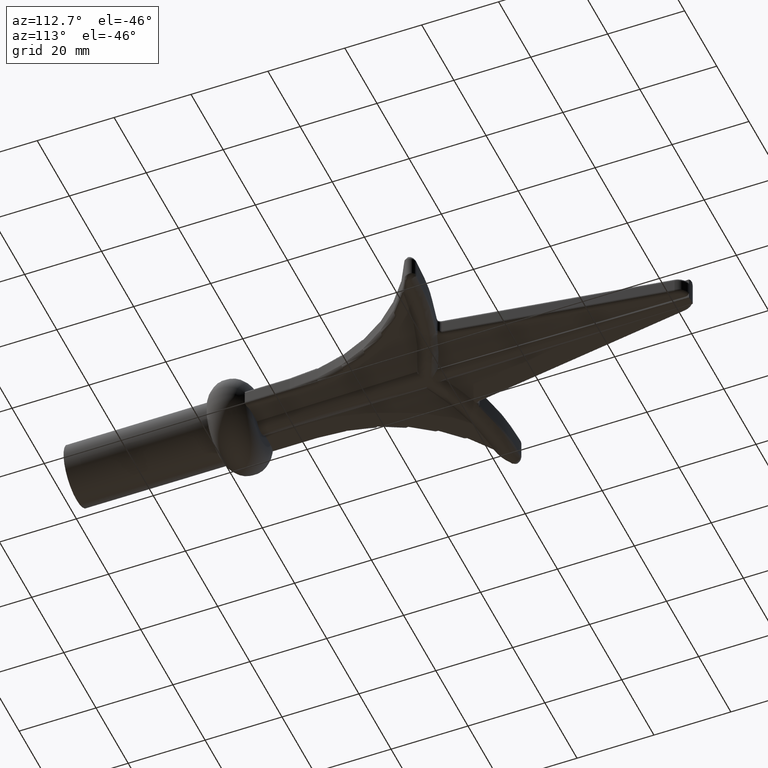
[diagram: clean part render]
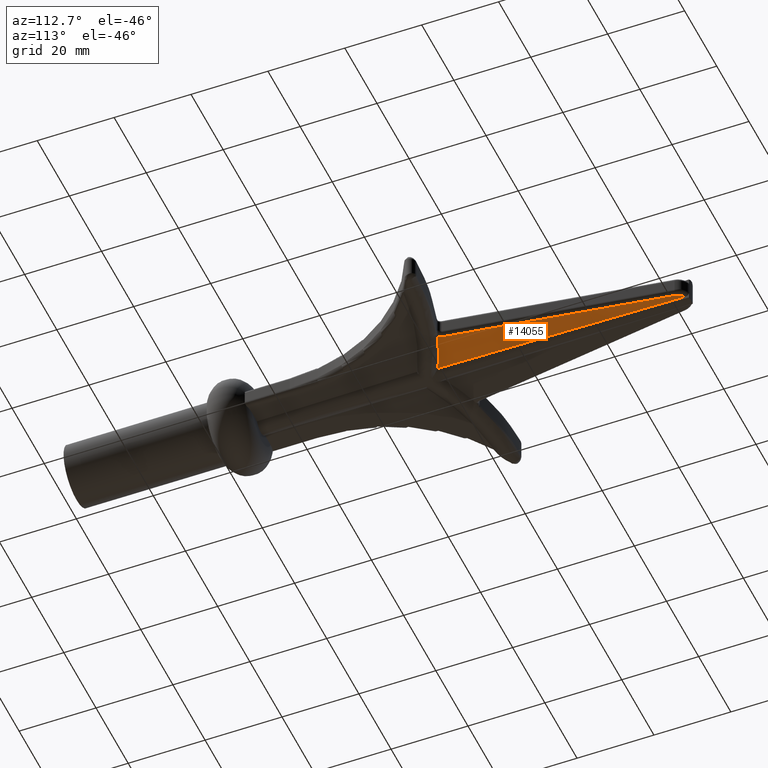
[diagram: same view with one face highlighted and labeled with its STEP entity id]
A machine part, auxiliary view. The second image highlights one B-rep face of the part: STEP entity #14055.
In plain terms, the highlighted planar face has unit normal (0, -0, 1).
Its self-contained STEP definition (entity closure, byte-faithful):
#656 = DIRECTION ( 'NONE',  ( -1.000000000000000000, 0.000000000000000000, 0.000000000000000000 ) ) ;
#919 = CIRCLE ( 'NONE', #10774, 2.541884961083666017 ) ;
#951 = DIRECTION ( 'NONE',  ( 1.000000000000000000, 0.000000000000000000, 0.000000000000000000 ) ) ;
#1012 = ORIENTED_EDGE ( 'NONE', *, *, #2938, .T. ) ;
#1371 = EDGE_CURVE ( 'NONE', #11426, #8743, #919, .T. ) ;
#1621 = ORIENTED_EDGE ( 'NONE', *, *, #1371, .T. ) ;
#1902 = DIRECTION ( 'NONE',  ( 0.000000000000000000, -0.000000000000000000, 1.000000000000000000 ) ) ;
#1956 = CARTESIAN_POINT ( 'NONE',  ( 5.233357646385202067, 96.45237504848141441, -2.500000000000005773 ) ) ;
#2228 = FACE_OUTER_BOUND ( 'NONE', #14128, .T. ) ;
#2474 = CARTESIAN_POINT ( 'NONE',  ( 1.538401368071802500, 137.4356019327498473, -2.500000000000000444 ) ) ;
#2728 = AXIS2_PLACEMENT_3D ( 'NONE', #8238, #9498, #951 ) ;
#2938 = EDGE_CURVE ( 'NONE', #4418, #9164, #11379, .T. ) ;
#2982 = EDGE_CURVE ( 'NONE', #8743, #4418, #12885, .T. ) ;
#3164 = AXIS2_PLACEMENT_3D ( 'NONE', #6681, #1902, #656 ) ;
#3591 = CARTESIAN_POINT ( 'NONE',  ( 2.050454179215916106, 94.89766996732623738, -2.499999999999999556 ) ) ;
#4262 = CARTESIAN_POINT ( 'NONE',  ( 2.511825613068717100, 156.8478729700932774, -2.500000000000000000 ) ) ;
#4418 = VERTEX_POINT ( 'NONE', #12453 ) ;
#4504 = VERTEX_POINT ( 'NONE', #10477 ) ;
#5333 = CARTESIAN_POINT ( 'NONE',  ( 4.337558076768898675E-16, 156.4581150389163895, -2.500000000000000000 ) ) ;
#5400 = EDGE_CURVE ( 'NONE', #4504, #11426, #14929, .T. ) ;
#6047 = CARTESIAN_POINT ( 'NONE',  ( 1.387408696656162510, 148.0697645301150089, -2.500000000000001332 ) ) ;
#6505 = DIRECTION ( 'NONE',  ( 0.000000000000000000, 0.000000000000000000, -1.000000000000000000 ) ) ;
#6605 = ORIENTED_EDGE ( 'NONE', *, *, #5400, .T. ) ;
#6681 = CARTESIAN_POINT ( 'NONE',  ( 4.337558076768898675E-16, 156.4581150389163895, -2.500000000000000000 ) ) ;
#6780 = CARTESIAN_POINT ( 'NONE',  ( 2.050454179215916106, 94.89766996732623738, -2.499999999999999556 ) ) ;
#7224 = CARTESIAN_POINT ( 'NONE',  ( 1.815379067204865526, 116.1669250317276578, -2.500000000000000888 ) ) ;
#7741 = DIRECTION ( 'NONE',  ( 1.000000000000000000, -2.183857730823196121E-14, 0.000000000000000000 ) ) ;
#8238 = CARTESIAN_POINT ( 'NONE',  ( 13.31317822230194814, 100.2811107468890270, -2.500000000000000000 ) ) ;
#8743 = VERTEX_POINT ( 'NONE', #15014 ) ;
#8772 = ORIENTED_EDGE ( 'NONE', *, *, #9716, .T. ) ;
#9164 = VERTEX_POINT ( 'NONE', #13990 ) ;
#9498 = DIRECTION ( 'NONE',  ( -0.000000000000000000, -0.000000000000000000, 1.000000000000000000 ) ) ;
#9631 = VECTOR ( 'NONE', #10414, 1000.000000000000114 ) ;
#9716 = EDGE_CURVE ( 'NONE', #9164, #4504, #11583, .T. ) ;
#10414 = DIRECTION ( 'NONE',  ( 0.1533342134455720762, -0.9881743869312883399, -0.000000000000000000 ) ) ;
#10421 = ORIENTED_EDGE ( 'NONE', *, *, #2982, .T. ) ;
#10477 = CARTESIAN_POINT ( 'NONE',  ( 2.050454179215916106, 94.89766996732623738, -2.499999999999999556 ) ) ;
#10774 = AXIS2_PLACEMENT_3D ( 'NONE', #5333, #6505, #7741 ) ;
#10820 = CARTESIAN_POINT ( 'NONE',  ( 1.191774651104702265, 158.7032992933524440, -2.500000000000000000 ) ) ;
#11379 = CIRCLE ( 'NONE', #2728, 2.000000000000000000 ) ;
#11426 = VERTEX_POINT ( 'NONE', #10820 ) ;
#11583 =( BOUNDED_CURVE ( )  B_SPLINE_CURVE ( 3, ( #15300, #11680, #1956, #6780 ),
 .UNSPECIFIED., .F., .F. ) 
 B_SPLINE_CURVE_WITH_KNOTS ( ( 4, 4 ),
 ( 0.7221980148825218881, 0.9143504739789781732 ),
 .UNSPECIFIED. ) 
 CURVE ( )  GEOMETRIC_REPRESENTATION_ITEM ( )  RATIONAL_B_SPLINE_CURVE ( ( 0.9687428967660496326, 0.9731774712555802953, 0.9795295120052400772, 0.9877990190150289784 ) ) 
 REPRESENTATION_ITEM ( '' )  );
#11680 = CARTESIAN_POINT ( 'NONE',  ( 8.535369773877267363, 97.76658012467082415, -2.500000000000005329 ) ) ;
#12257 = CARTESIAN_POINT ( 'NONE',  ( 1.191774651104702265, 158.7032992933524440, -2.500000000000000000 ) ) ;
#12453 = CARTESIAN_POINT ( 'NONE',  ( 11.33682944843937079, 99.97444231999789110, -2.500000000000000000 ) ) ;
#12885 = LINE ( 'NONE', #4262, #9631 ) ;
#13531 = CARTESIAN_POINT ( 'NONE',  ( 1.937072223250142944, 105.5323367927781959, -2.499999999999999556 ) ) ;
#13990 = CARTESIAN_POINT ( 'NONE',  ( 11.93922618597874497, 98.82775057064800706, -2.500000000000005329 ) ) ;
#14055 = ADVANCED_FACE ( 'NONE', ( #2228 ), #15104, .F. ) ;
#14128 = EDGE_LOOP ( 'NONE', ( #10421, #1012, #8772, #6605, #1621 ) ) ;
#14929 = B_SPLINE_CURVE_WITH_KNOTS ( 'NONE', 3,
 ( #3591, #13531, #7224, #2474, #6047, #12257 ),
 .UNSPECIFIED., .F., .F.,
 ( 4, 2, 4 ),
 ( 0.04689982332701799622, 0.07880562545476349490, 0.1107114275825089866 ),
 .UNSPECIFIED. ) ;
#15014 = CARTESIAN_POINT ( 'NONE',  ( 2.511825613068712215, 156.8478729700932774, -2.500000000000000000 ) ) ;
#15104 = PLANE ( 'NONE',  #3164 ) ;
#15300 = CARTESIAN_POINT ( 'NONE',  ( 11.93922618597874497, 98.82775057064800706, -2.500000000000005329 ) ) ;